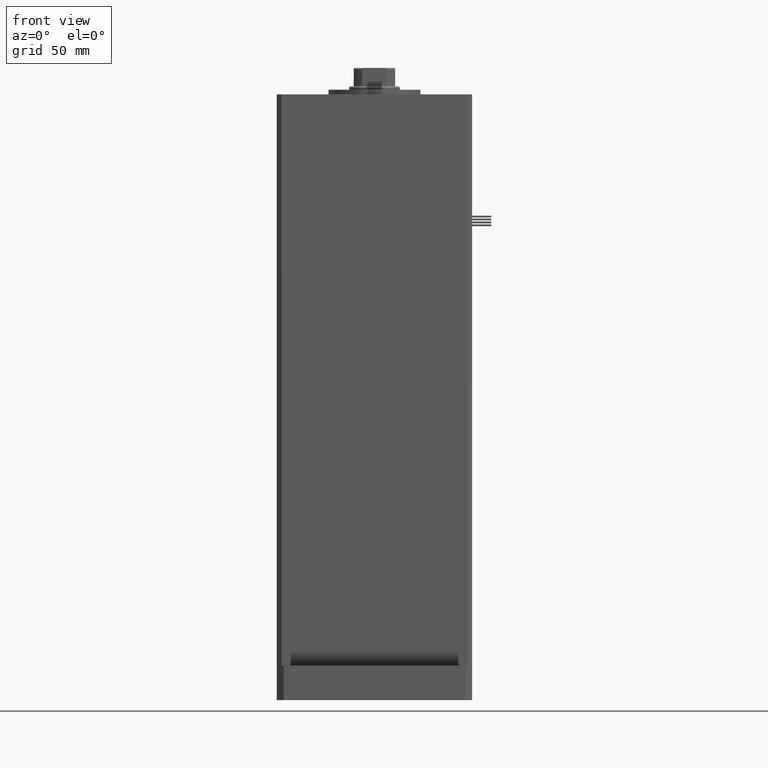
[diagram: clean part render]
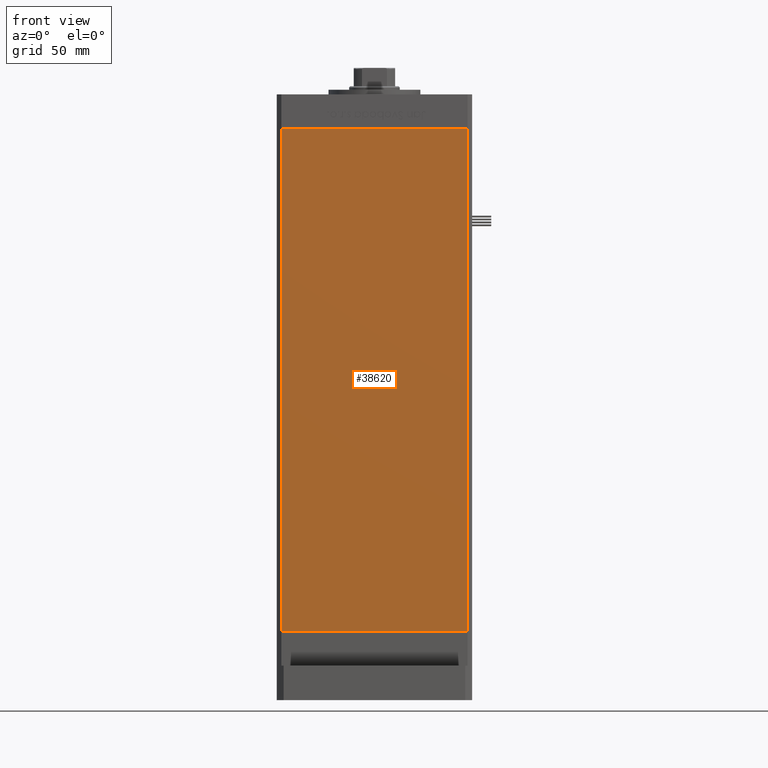
[diagram: same view with one face highlighted and labeled with its STEP entity id]
A machine part, front view. The second image highlights one B-rep face of the part: STEP entity #38620.
In plain terms, the highlighted planar face has unit normal (0, 1, 0).
Its self-contained STEP definition (entity closure, byte-faithful):
#2578 = VERTEX_POINT ( 'NONE', #28223 ) ;
#4241 = EDGE_CURVE ( 'NONE', #43041, #11313, #24607, .T. ) ;
#4369 = LINE ( 'NONE', #25722, #5680 ) ;
#5680 = VECTOR ( 'NONE', #13193, 1000.000000000000000 ) ;
#6263 = FACE_OUTER_BOUND ( 'NONE', #41244, .T. ) ;
#6334 = CARTESIAN_POINT ( 'NONE',  ( 40.49999999999998579, -37.50000000000000711, 218.5000000000000000 ) ) ;
#7313 = CARTESIAN_POINT ( 'NONE',  ( -40.49999999999998579, -37.50000000000000711, 218.5000000000000000 ) ) ;
#7538 = DIRECTION ( 'NONE',  ( 1.000000000000000000, 0.000000000000000000, 0.000000000000000000 ) ) ;
#11313 = VERTEX_POINT ( 'NONE', #21227 ) ;
#13193 = DIRECTION ( 'NONE',  ( -0.000000000000000000, -0.000000000000000000, -1.000000000000000000 ) ) ;
#14666 = DIRECTION ( 'NONE',  ( -0.000000000000000000, -0.000000000000000000, -1.000000000000000000 ) ) ;
#14808 = DIRECTION ( 'NONE',  ( 0.000000000000000000, 1.000000000000000000, 0.000000000000000000 ) ) ;
#15534 = ORIENTED_EDGE ( 'NONE', *, *, #50037, .T. ) ;
#16146 = VECTOR ( 'NONE', #7538, 1000.000000000000000 ) ;
#16932 = LINE ( 'NONE', #25442, #16146 ) ;
#17956 = CARTESIAN_POINT ( 'NONE',  ( -40.49999999999998579, -37.50000000000000711, 0.000000000000000000 ) ) ;
#19524 = EDGE_CURVE ( 'NONE', #43041, #38350, #16932, .T. ) ;
#21227 = CARTESIAN_POINT ( 'NONE',  ( -40.49999999999998579, -37.50000000000000711, 0.000000000000000000 ) ) ;
#22624 = ORIENTED_EDGE ( 'NONE', *, *, #37279, .F. ) ;
#22781 = LINE ( 'NONE', #17956, #41730 ) ;
#24607 = LINE ( 'NONE', #36301, #43144 ) ;
#25442 = CARTESIAN_POINT ( 'NONE',  ( -40.49999999999998579, -37.50000000000000711, 218.5000000000000000 ) ) ;
#25722 = CARTESIAN_POINT ( 'NONE',  ( 40.49999999999998579, -37.50000000000000711, 218.5000000000000000 ) ) ;
#27042 = CARTESIAN_POINT ( 'NONE',  ( -40.49999999999998579, -37.50000000000000711, 218.5000000000000000 ) ) ;
#27894 = PLANE ( 'NONE',  #54835 ) ;
#28223 = CARTESIAN_POINT ( 'NONE',  ( 40.49999999999998579, -37.50000000000000711, 0.000000000000000000 ) ) ;
#32161 = DIRECTION ( 'NONE',  ( 1.000000000000000000, 0.000000000000000000, 0.000000000000000000 ) ) ;
#33753 = ORIENTED_EDGE ( 'NONE', *, *, #4241, .T. ) ;
#36301 = CARTESIAN_POINT ( 'NONE',  ( -40.49999999999998579, -37.50000000000000711, 218.5000000000000000 ) ) ;
#36438 = DIRECTION ( 'NONE',  ( 0.000000000000000000, -0.000000000000000000, 1.000000000000000000 ) ) ;
#37279 = EDGE_CURVE ( 'NONE', #38350, #2578, #4369, .T. ) ;
#38350 = VERTEX_POINT ( 'NONE', #6334 ) ;
#38620 = ADVANCED_FACE ( 'NONE', ( #6263 ), #27894, .F. ) ;
#41244 = EDGE_LOOP ( 'NONE', ( #15534, #22624, #52808, #33753 ) ) ;
#41730 = VECTOR ( 'NONE', #32161, 1000.000000000000000 ) ;
#43041 = VERTEX_POINT ( 'NONE', #7313 ) ;
#43144 = VECTOR ( 'NONE', #14666, 1000.000000000000000 ) ;
#50037 = EDGE_CURVE ( 'NONE', #11313, #2578, #22781, .T. ) ;
#52808 = ORIENTED_EDGE ( 'NONE', *, *, #19524, .F. ) ;
#54835 = AXIS2_PLACEMENT_3D ( 'NONE', #27042, #14808, #36438 ) ;